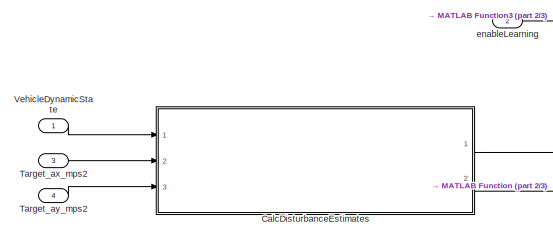
[diagram: root canvas - part 1/3, top left region]
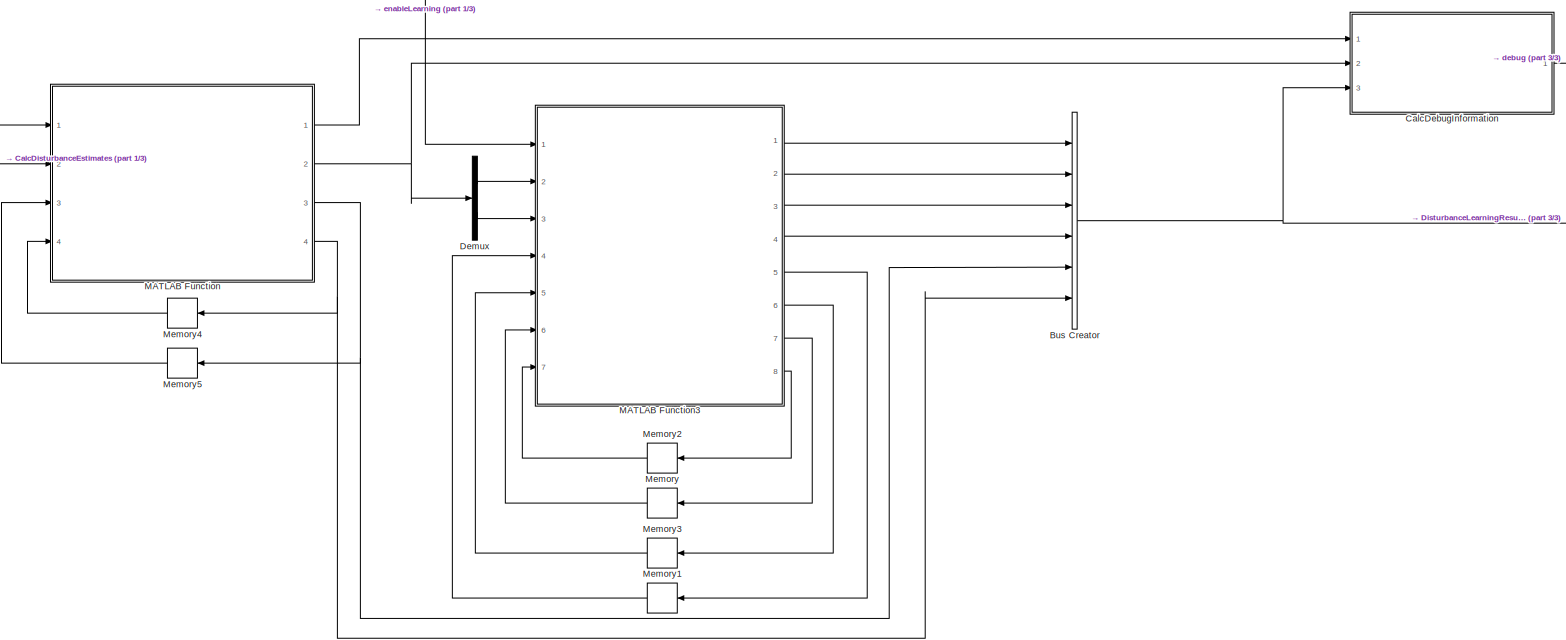
[diagram: root canvas - part 2/3, center side, full height]
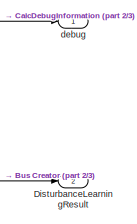
[diagram: root canvas - part 3/3, top right region]
MODEL slx_3f7791fa1411
KIND model
BLOCK [BusCreator] Bus Creator
  DisplayOption = bar
  InheritFromInputs = on
  Inputs = 6
  Ports = [6, 1]
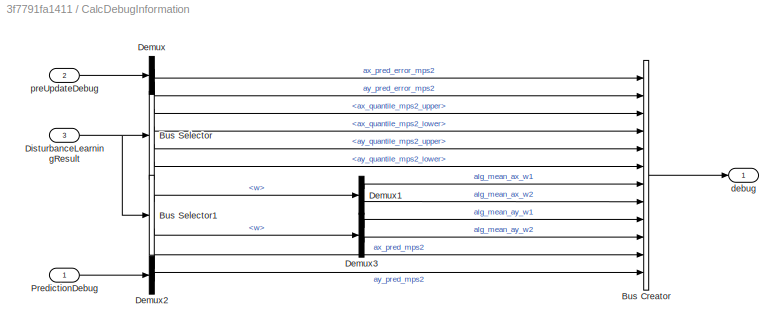
BLOCK [SubSystem] CalcDebugInformation
  Ports = [3, 1]
  RequestExecContextInheritance = off
BLOCK [BusCreator] CalcDebugInformation/Bus Creator
  DisplayOption = bar
  InheritFromInputs = on
  Inputs = 12
  Ports = [12, 1]
BLOCK [BusSelector] CalcDebugInformation/Bus Selector
  OutputAsBus = off
  OutputSignals = ax_quantile_mps2_upper,ax_quantile_mps2_lower,ay_quantile_mps2_upper,ay_quantile_mps2_lower
  Ports = [1, 4]
BLOCK [BusSelector] CalcDebugInformation/Bus Selector1
  OutputAsBus = off
  OutputSignals = alg_mean_ax.w,alg_mean_ay.w
  Ports = [1, 2]
BLOCK [Demux] CalcDebugInformation/Demux
  DisplayOption = bar
  Outputs = 2
  Ports = [1, 2]
BLOCK [Demux] CalcDebugInformation/Demux1
  DisplayOption = bar
  Outputs = 2
  Ports = [1, 2]
BLOCK [Demux] CalcDebugInformation/Demux2
  DisplayOption = bar
  Outputs = 2
  Ports = [1, 2]
BLOCK [Demux] CalcDebugInformation/Demux3
  DisplayOption = bar
  Outputs = 2
  Ports = [1, 2]
BLOCK [Inport] CalcDebugInformation/DisturbanceLearningResult
  IconDisplay = Port number
  Port = 3
BLOCK [Inport] CalcDebugInformation/PredictionDebug
  IconDisplay = Port number
BLOCK [Outport] CalcDebugInformation/debug
  IconDisplay = Port number
BLOCK [Inport] CalcDebugInformation/preUpdateDebug
  IconDisplay = Port number
  Port = 2
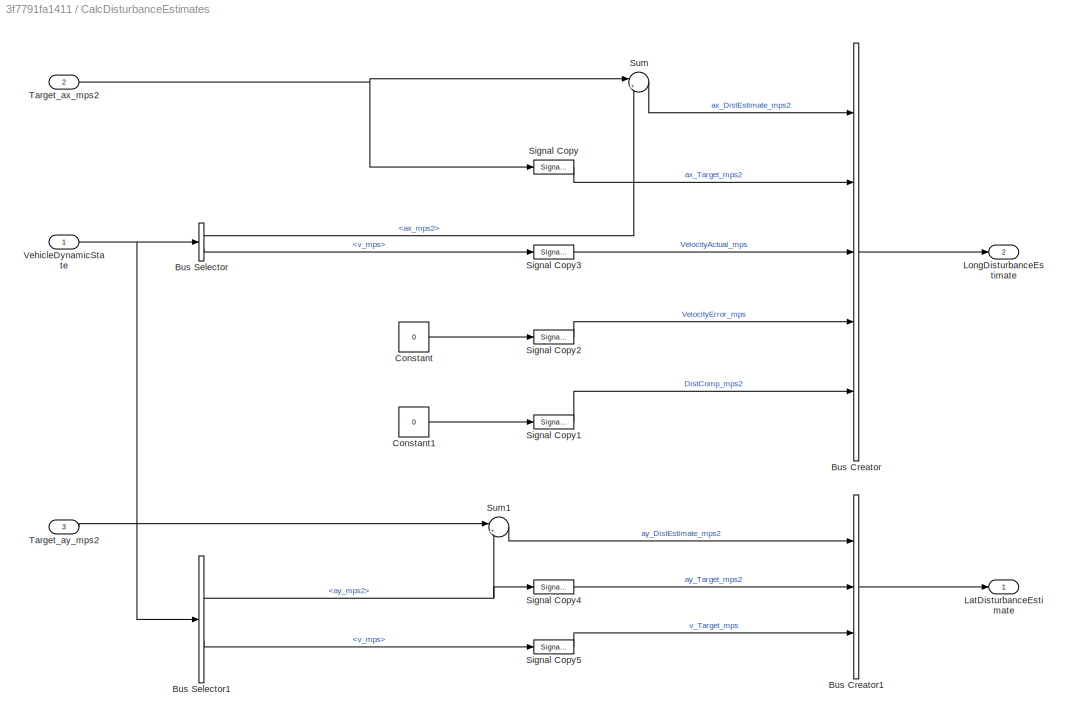
BLOCK [SubSystem] CalcDisturbanceEstimates
  Ports = [3, 2]
  RequestExecContextInheritance = off
BLOCK [BusCreator] CalcDisturbanceEstimates/Bus Creator
  DisplayOption = bar
  InheritFromInputs = on
  Inputs = 5
  Ports = [5, 1]
BLOCK [BusCreator] CalcDisturbanceEstimates/Bus Creator1
  DisplayOption = bar
  InheritFromInputs = on
  Inputs = 3
  Ports = [3, 1]
BLOCK [BusSelector] CalcDisturbanceEstimates/Bus Selector
  OutputAsBus = off
  OutputSignals = ax_mps2,v_mps
  Ports = [1, 2]
BLOCK [BusSelector] CalcDisturbanceEstimates/Bus Selector1
  OutputAsBus = off
  OutputSignals = ay_mps2,v_mps
  Ports = [1, 2]
BLOCK [Constant] CalcDisturbanceEstimates/Constant
  Value = 0
BLOCK [Constant] CalcDisturbanceEstimates/Constant1
  Value = 0
BLOCK [Outport] CalcDisturbanceEstimates/LatDisturbanceEstimate
  IconDisplay = Port number
  OutDataTypeStr = Bus: LatDistEstimation
BLOCK [Outport] CalcDisturbanceEstimates/LongDisturbanceEstimate
  IconDisplay = Port number
  OutDataTypeStr = Bus: LongDistEstimation
  Port = 2
BLOCK [SignalConversion] CalcDisturbanceEstimates/Signal Copy
  OverrideOpt = off
BLOCK [SignalConversion] CalcDisturbanceEstimates/Signal Copy1
  OverrideOpt = off
BLOCK [SignalConversion] CalcDisturbanceEstimates/Signal Copy2
  OverrideOpt = off
BLOCK [SignalConversion] CalcDisturbanceEstimates/Signal Copy3
  OverrideOpt = off
BLOCK [SignalConversion] CalcDisturbanceEstimates/Signal Copy4
  OverrideOpt = off
BLOCK [SignalConversion] CalcDisturbanceEstimates/Signal Copy5
  OverrideOpt = off
BLOCK [Sum] CalcDisturbanceEstimates/Sum
  IconShape = round
  InputSameDT = off
  Inputs = |+-
  OutDataTypeStr = Inherit: Inherit via internal rule
  Ports = [2, 1]
  SaturateOnIntegerOverflow = off
BLOCK [Sum] CalcDisturbanceEstimates/Sum1
  IconShape = round
  InputSameDT = off
  Inputs = |+-
  OutDataTypeStr = Inherit: Inherit via internal rule
  Ports = [2, 1]
  SaturateOnIntegerOverflow = off
BLOCK [Inport] CalcDisturbanceEstimates/Target_ax_mps2
  IconDisplay = Port number
  Port = 2
BLOCK [Inport] CalcDisturbanceEstimates/Target_ay_mps2
  IconDisplay = Port number
  Port = 3
BLOCK [Inport] CalcDisturbanceEstimates/VehicleDynamicState
  IconDisplay = Port number
  OutDataTypeStr = Bus: VehicleDynamicState
BLOCK [Demux] Demux
  DisplayOption = bar
  Outputs = 2
  Ports = [1, 2]
BLOCK [Outport] DisturbanceLearningResult
  IconDisplay = Port number
  OutDataTypeStr = Bus: DisturbanceLearningResult
  Port = 2
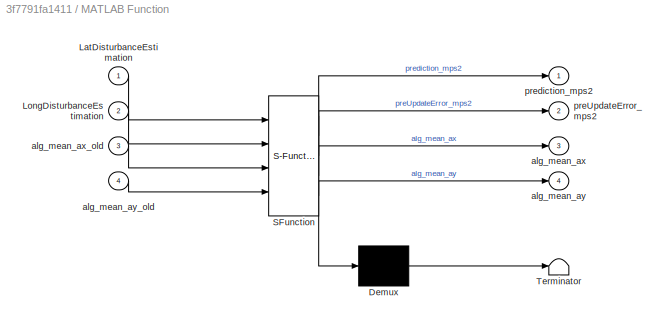
BLOCK [SubSystem] MATLAB Function
  ErrorFcn = Stateflow.Translate.translate
  PermitHierarchicalResolution = ExplicitOnly
  Ports = [4, 4]
  RequestExecContextInheritance = off
  SFBlockType = MATLAB Function
  TreatAsAtomicUnit = on
BLOCK [Demux] MATLAB Function/ Demux 
  Outputs = 1
  Ports = [1, 1]
BLOCK [S-Function] MATLAB Function/ SFunction 
  EnableBusSupport = on
  FunctionName = sf_sfun
  PortCounts = [4 5]
  Ports = [4, 5]
  SFcnIsStateOwnerBlock = off
  SFunctionDeploymentMode = off
  Tag = Stateflow S-Function mvdc_disturbance_learning 2
BLOCK [Terminator] MATLAB Function/ Terminator 
BLOCK [Inport] MATLAB Function/LatDisturbanceEstimation
  IconDisplay = Port number
BLOCK [Inport] MATLAB Function/LongDisturbanceEstimation
  IconDisplay = Port number
  Port = 2
BLOCK [Outport] MATLAB Function/alg_mean_ax
  IconDisplay = Port number
  Port = 3
BLOCK [Inport] MATLAB Function/alg_mean_ax_old
  IconDisplay = Port number
  Port = 3
BLOCK [Outport] MATLAB Function/alg_mean_ay
  IconDisplay = Port number
  Port = 4
BLOCK [Inport] MATLAB Function/alg_mean_ay_old
  IconDisplay = Port number
  Port = 4
BLOCK [Outport] MATLAB Function/preUpdateError_mps2
  IconDisplay = Port number
  Port = 2
BLOCK [Outport] MATLAB Function/prediction_mps2
  IconDisplay = Port number
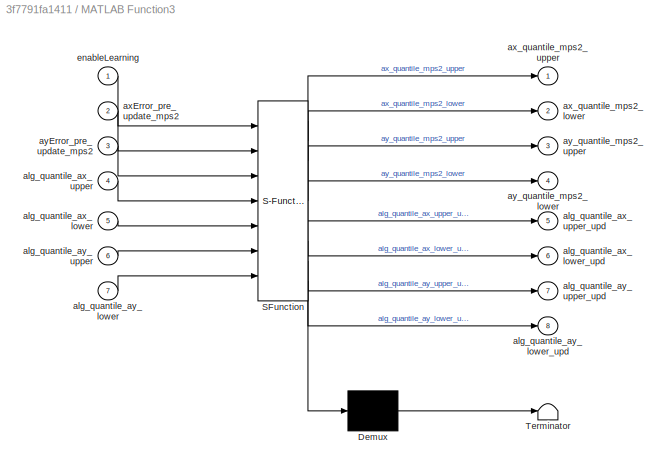
BLOCK [SubSystem] MATLAB Function3
  ErrorFcn = Stateflow.Translate.translate
  PermitHierarchicalResolution = ExplicitOnly
  Ports = [7, 8]
  RequestExecContextInheritance = off
  SFBlockType = MATLAB Function
  TreatAsAtomicUnit = on
BLOCK [Demux] MATLAB Function3/ Demux 
  Outputs = 1
  Ports = [1, 1]
BLOCK [S-Function] MATLAB Function3/ SFunction 
  EnableBusSupport = on
  FunctionName = sf_sfun
  PortCounts = [7 9]
  Ports = [7, 9]
  SFcnIsStateOwnerBlock = off
  SFunctionDeploymentMode = off
  Tag = Stateflow S-Function mvdc_disturbance_learning 4
BLOCK [Terminator] MATLAB Function3/ Terminator 
BLOCK [Inport] MATLAB Function3/alg_quantile_ax_lower
  IconDisplay = Port number
  Port = 5
BLOCK [Outport] MATLAB Function3/alg_quantile_ax_lower_upd
  IconDisplay = Port number
  Port = 6
BLOCK [Inport] MATLAB Function3/alg_quantile_ax_upper
  IconDisplay = Port number
  Port = 4
BLOCK [Outport] MATLAB Function3/alg_quantile_ax_upper_upd
  IconDisplay = Port number
  Port = 5
BLOCK [Inport] MATLAB Function3/alg_quantile_ay_lower
  IconDisplay = Port number
  Port = 7
BLOCK [Outport] MATLAB Function3/alg_quantile_ay_lower_upd
  IconDisplay = Port number
  Port = 8
BLOCK [Inport] MATLAB Function3/alg_quantile_ay_upper
  IconDisplay = Port number
  Port = 6
BLOCK [Outport] MATLAB Function3/alg_quantile_ay_upper_upd
  IconDisplay = Port number
  Port = 7
BLOCK [Inport] MATLAB Function3/axError_pre_update_mps2
  IconDisplay = Port number
  Port = 2
BLOCK [Outport] MATLAB Function3/ax_quantile_mps2_lower
  IconDisplay = Port number
  Port = 2
BLOCK [Outport] MATLAB Function3/ax_quantile_mps2_upper
  IconDisplay = Port number
BLOCK [Inport] MATLAB Function3/ayError_pre_update_mps2
  IconDisplay = Port number
  Port = 3
BLOCK [Outport] MATLAB Function3/ay_quantile_mps2_lower
  IconDisplay = Port number
  Port = 4
BLOCK [Outport] MATLAB Function3/ay_quantile_mps2_upper
  IconDisplay = Port number
  Port = 3
BLOCK [Inport] MATLAB Function3/enableLearning
  IconDisplay = Port number
BLOCK [Memory] Memory
  InitialCondition = alg_quantile_ay_upper
BLOCK [Memory] Memory1
  InitialCondition = alg_quantile_ax_upper
BLOCK [Memory] Memory2
  InitialCondition = alg_quantile_ay_lower
BLOCK [Memory] Memory3
  InitialCondition = alg_quantile_ax_lower
BLOCK [Memory] Memory4
  InitialCondition = alg_mean_ay
BLOCK [Memory] Memory5
  InitialCondition = alg_mean_ax
BLOCK [Inport] Target_ax_mps2
  IconDisplay = Port number
  Port = 3
BLOCK [Inport] Target_ay_mps2
  IconDisplay = Port number
  Port = 4
BLOCK [Inport] VehicleDynamicState
  IconDisplay = Port number
  OutDataTypeStr = Bus: VehicleDynamicState
BLOCK [Outport] debug
  IconDisplay = Port number
  OutDataTypeStr = Bus: mvdc_dist_learning_debug
BLOCK [Inport] enableLearning
  IconDisplay = Port number
  OutDataTypeStr = boolean
  Port = 2
NET Bus Creator:1 -> CalcDebugInformation:3, DisturbanceLearningResult:1
LINE CalcDebugInformation/Bus Creator:1 -> CalcDebugInformation/debug:1
LINE CalcDebugInformation/Bus Selector1:1 -> CalcDebugInformation/Demux1:1
LINE CalcDebugInformation/Bus Selector1:2 -> CalcDebugInformation/Demux3:1
LINE CalcDebugInformation/Bus Selector:1 -> CalcDebugInformation/Bus Creator:3
LINE CalcDebugInformation/Bus Selector:2 -> CalcDebugInformation/Bus Creator:4
LINE CalcDebugInformation/Bus Selector:3 -> CalcDebugInformation/Bus Creator:5
LINE CalcDebugInformation/Bus Selector:4 -> CalcDebugInformation/Bus Creator:6
LINE CalcDebugInformation/Demux1:1 -> CalcDebugInformation/Bus Creator:7
LINE CalcDebugInformation/Demux1:2 -> CalcDebugInformation/Bus Creator:8
LINE CalcDebugInformation/Demux2:1 -> CalcDebugInformation/Bus Creator:11
LINE CalcDebugInformation/Demux2:2 -> CalcDebugInformation/Bus Creator:12
LINE CalcDebugInformation/Demux3:1 -> CalcDebugInformation/Bus Creator:9
LINE CalcDebugInformation/Demux3:2 -> CalcDebugInformation/Bus Creator:10
LINE CalcDebugInformation/Demux:1 -> CalcDebugInformation/Bus Creator:1
LINE CalcDebugInformation/Demux:2 -> CalcDebugInformation/Bus Creator:2
NET CalcDebugInformation/DisturbanceLearningResult:1 -> CalcDebugInformation/Bus Selector1:1, CalcDebugInformation/Bus Selector:1
LINE CalcDebugInformation/PredictionDebug:1 -> CalcDebugInformation/Demux2:1
LINE CalcDebugInformation/preUpdateDebug:1 -> CalcDebugInformation/Demux:1
LINE CalcDebugInformation:1 -> debug:1
LINE CalcDisturbanceEstimates/Bus Creator1:1 -> CalcDisturbanceEstimates/LatDisturbanceEstimate:1
LINE CalcDisturbanceEstimates/Bus Creator:1 -> CalcDisturbanceEstimates/LongDisturbanceEstimate:1
NET CalcDisturbanceEstimates/Bus Selector1:1 -> CalcDisturbanceEstimates/Signal Copy4:1, CalcDisturbanceEstimates/Sum1:2
LINE CalcDisturbanceEstimates/Bus Selector1:2 -> CalcDisturbanceEstimates/Signal Copy5:1
LINE CalcDisturbanceEstimates/Bus Selector:1 -> CalcDisturbanceEstimates/Sum:2
LINE CalcDisturbanceEstimates/Bus Selector:2 -> CalcDisturbanceEstimates/Signal Copy3:1
LINE CalcDisturbanceEstimates/Constant1:1 -> CalcDisturbanceEstimates/Signal Copy1:1
LINE CalcDisturbanceEstimates/Constant:1 -> CalcDisturbanceEstimates/Signal Copy2:1
LINE CalcDisturbanceEstimates/Signal Copy1:1 -> CalcDisturbanceEstimates/Bus Creator:5
LINE CalcDisturbanceEstimates/Signal Copy2:1 -> CalcDisturbanceEstimates/Bus Creator:4
LINE CalcDisturbanceEstimates/Signal Copy3:1 -> CalcDisturbanceEstimates/Bus Creator:3
LINE CalcDisturbanceEstimates/Signal Copy4:1 -> CalcDisturbanceEstimates/Bus Creator1:2
LINE CalcDisturbanceEstimates/Signal Copy5:1 -> CalcDisturbanceEstimates/Bus Creator1:3
LINE CalcDisturbanceEstimates/Signal Copy:1 -> CalcDisturbanceEstimates/Bus Creator:2
LINE CalcDisturbanceEstimates/Sum1:1 -> CalcDisturbanceEstimates/Bus Creator1:1
LINE CalcDisturbanceEstimates/Sum:1 -> CalcDisturbanceEstimates/Bus Creator:1
NET CalcDisturbanceEstimates/Target_ax_mps2:1 -> CalcDisturbanceEstimates/Signal Copy:1, CalcDisturbanceEstimates/Sum:1
LINE CalcDisturbanceEstimates/Target_ay_mps2:1 -> CalcDisturbanceEstimates/Sum1:1
NET CalcDisturbanceEstimates/VehicleDynamicState:1 -> CalcDisturbanceEstimates/Bus Selector1:1, CalcDisturbanceEstimates/Bus Selector:1
LINE CalcDisturbanceEstimates:1 -> MATLAB Function:1
LINE CalcDisturbanceEstimates:2 -> MATLAB Function:2
LINE Demux:1 -> MATLAB Function3:2
LINE Demux:2 -> MATLAB Function3:3
LINE MATLAB Function3:1 -> Bus Creator:1
LINE MATLAB Function3:2 -> Bus Creator:2
LINE MATLAB Function3:3 -> Bus Creator:3
LINE MATLAB Function3:4 -> Bus Creator:4
LINE MATLAB Function3:5 -> Memory1:1
LINE MATLAB Function3:6 -> Memory3:1
LINE MATLAB Function3:7 -> Memory:1
LINE MATLAB Function3:8 -> Memory2:1
LINE MATLAB Function:1 -> CalcDebugInformation:1
NET MATLAB Function:2 -> CalcDebugInformation:2, Demux:1
NET MATLAB Function:3 -> Bus Creator:5, Memory5:1
NET MATLAB Function:4 -> Bus Creator:6, Memory4:1
LINE Memory1:1 -> MATLAB Function3:4
LINE Memory2:1 -> MATLAB Function3:7
LINE Memory3:1 -> MATLAB Function3:5
LINE Memory4:1 -> MATLAB Function:4
LINE Memory5:1 -> MATLAB Function:3
LINE Memory:1 -> MATLAB Function3:6
LINE Target_ax_mps2:1 -> CalcDisturbanceEstimates:2
LINE Target_ay_mps2:1 -> CalcDisturbanceEstimates:3
LINE VehicleDynamicState:1 -> CalcDisturbanceEstimates:1
LINE enableLearning:1 -> MATLAB Function3:1
note: NET lines group one-source signal fan-out (src -> all destinations, sorted); 1:1 wires keep LINE
CHART MATLAB Function states=1 transitions=1
  STATE_LABEL 'eML_blk_kernel()'
  STATE_LABEL 'SCRIPT:\nfunction [prediction_mps2, preUpdateError_mps2, ...\n    alg_mean_ax, alg_mean_ay]...\n    = fcn(LatDisturbanceEstimation, LongDisturbanceEstimation, alg_mean_ax_old, alg_mean_ay_old)\n\n% update mean prediction for longitudinal and lateral disturbance model\n[ax_pre_update_mps2, alg_mean_ax] = learnDisturbanceMean(...\n        [LongDisturbanceEstimation.ax_Target_mps2; ...\n         LongDisturba...<+674ch>'
CHART MATLAB Function3 states=1 transitions=1
  STATE_LABEL 'eML_blk_kernel()'
  STATE_LABEL 'SCRIPT:\nfunction [ax_quantile_mps2_upper, ax_quantile_mps2_lower, ay_quantile_mps2_upper, ay_quantile_mps2_lower,...\n    alg_quantile_ax_upper_upd, alg_quantile_ax_lower_upd, alg_quantile_ay_upper_upd, alg_quantile_ay_lower_upd]...\n    = fcn(enableLearning, axError_pre_update_mps2, ayError_pre_update_mps2, ...\n    alg_quantile_ax_upper, alg_quantile_ax_lower, alg_quantile_ay_upper, alg_quantile_ay...<+981ch>'
